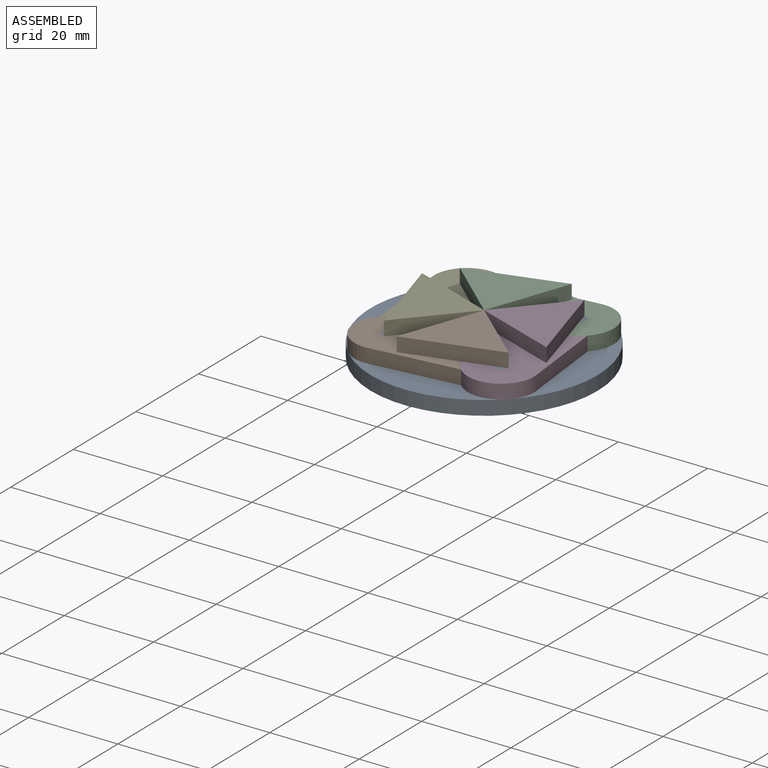
[diagram: assembled view]
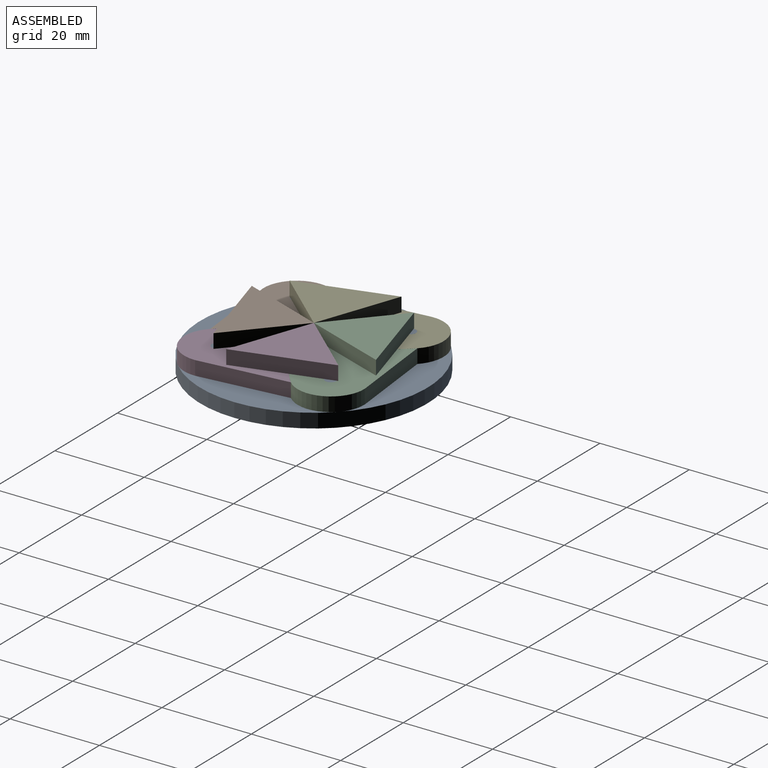
[diagram: assembled view, second angle]
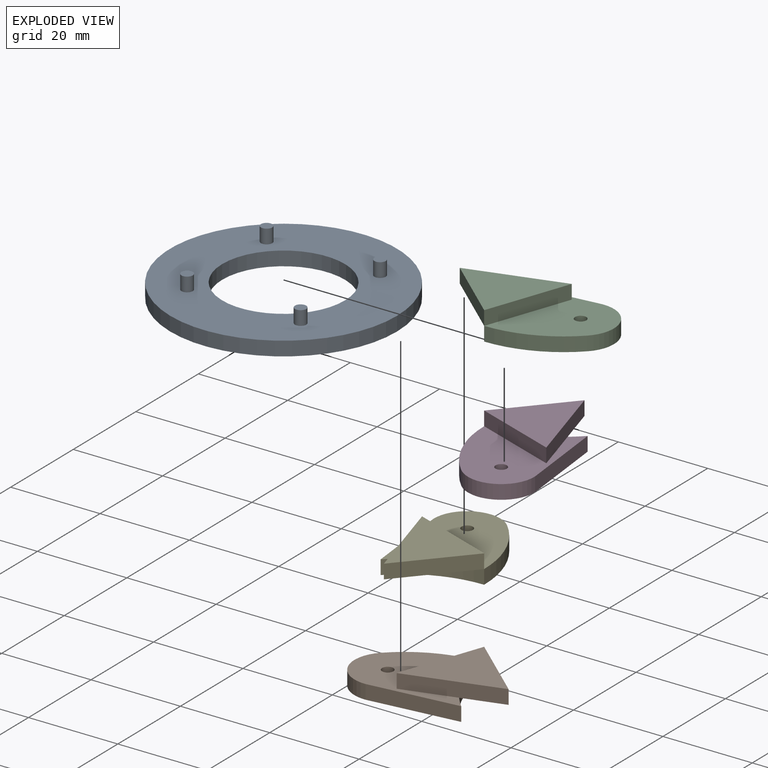
[diagram: exploded view]
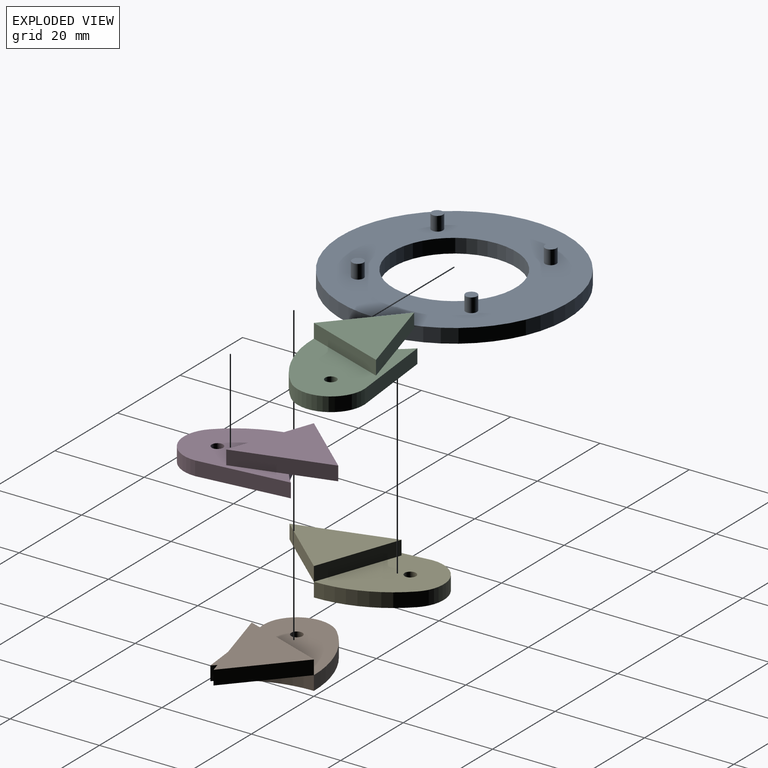
[diagram: exploded view, second angle]
ASSEMBLY  parts=5 mates=4
PART A: 12 faces, bbox 50.8x50.8x6.4 mm
  f0: cylinder r=1.27mm len=3.18mm, axis (0,0,-1), area 25.3mm2, adj f1,f11
  f1: plane 2.54x2.54mm, normal (0,0,1), area 5.1mm2, adj f0
  f2: cylinder r=1.27mm len=3.18mm, axis (0,0,-1), area 25.3mm2, adj f3,f11
  f3: plane 2.54x2.54mm, normal (0,0,1), area 5.1mm2, adj f2
  f4: cylinder r=1.27mm len=3.18mm, axis (0,0,-1), area 25.3mm2, adj f5,f11
  f5: plane 2.54x2.54mm, normal (0,0,1), area 5.1mm2, adj f4
  f6: cylinder r=1.27mm len=3.18mm, axis (0,0,-1), area 25.3mm2, adj f7,f11
  f7: plane 2.54x2.54mm, normal (0,0,1), area 5.1mm2, adj f6
  f8: cylinder r=13.75mm len=27.49mm, axis (0,0,1), area 274.2mm2, adj f10,f11
  f9: cylinder r=25.4mm len=50.8mm, axis (0,0,1), area 506.7mm2, adj f10,f11
  f10: plane 50.8x50.8mm, normal (0,0,-1), area 1433.2mm2, adj f8,f9
  f11: plane 50.8x50.8mm, normal (0,0,1), area 1412.9mm2, adj f0,f2,f4,f6,f8,f9
PART B: 12 faces, bbox 26.3x26.6x6.4 mm
  f0: plane 25.4x25.4mm, normal (0,0,1), area 280.4mm2, adj f1,f2,f3,f4,f5,f9,f10
  f1: cylinder r=25.4mm len=17.96mm, axis (0,0,-1), area 63.3mm2, adj f0,f2,f5,f6
  f2: cylinder r=7.44mm len=13.55mm, axis (0,0,-1), area 59.9mm2, adj f0,f1,f3,f6
  f3: plane 14.76x11.85mm, normal (0.78,-0.63,0), area 60.1mm2, adj f0,f2,f5,f6
  f4: cylinder r=1.27mm len=3.18mm, axis (0,0,-1), area 25.3mm2, adj f0,f6
  f5: cylinder r=25.4mm len=17.96mm, axis (0,0,-1), area 63.3mm2, adj f0,f1,f3,f6,f7
  f6: plane 25.4x25.4mm, normal (0,0,-1), area 363.4mm2, adj f1,f2,f3,f4,f5
  f7: plane 18.89x8.39mm, normal (0,0,-1), area 90.2mm2, adj f5,f8,f10
  f8: plane 18.89x3.18mm, normal (-0.06,1,0), area 60.1mm2, adj f7,f9,f10,f11
  f9: plane 17.79x8.43mm, normal (-0.9,-0.43,0), area 62.5mm2, adj f0,f8,f10,f11
  f10: plane 19.01x10.46mm, normal (0.88,-0.48,0), area 68.9mm2, adj f0,f7,f8,f9,f11
  f11: plane 19.01x18.89mm, normal (0,0,1), area 173.2mm2, adj f8,f9,f10
PART C: same geometry as B
PART D: same geometry as B
PART E: same geometry as B
PLACE A at identity fixed
PLACE B rot(axis=(0,0,-1),45deg) t=(-12.7,5.26,0)mm
PLACE C rot(axis=(0,0,1),135deg) t=(12.7,-5.26,0)mm
PLACE D rot(axis=(0,0,1),45deg) t=(-5.26,-12.7,0)mm
PLACE E rot(axis=(0,0,-1),135deg) t=(5.26,12.7,0)mm
MATE revolute E.f2 <-> A.f2  axis (0,0,1) through (-12.7,12.7,3.18)mm
MATE revolute D.f2 <-> A.f4  axis (0,0,1) through (12.7,-12.7,3.18)mm
MATE revolute C.f2 <-> A.f6  axis (0,0,1) through (12.7,12.7,3.18)mm
MATE revolute B.f2 <-> A.f0  axis (0,0,1) through (-12.7,-12.7,3.18)mm
